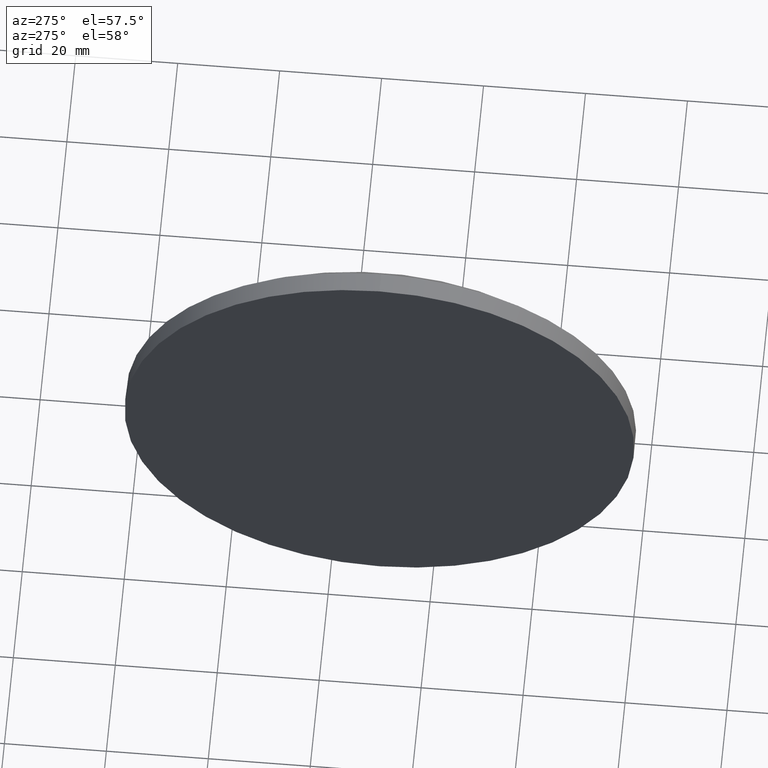
[diagram: clean part render]
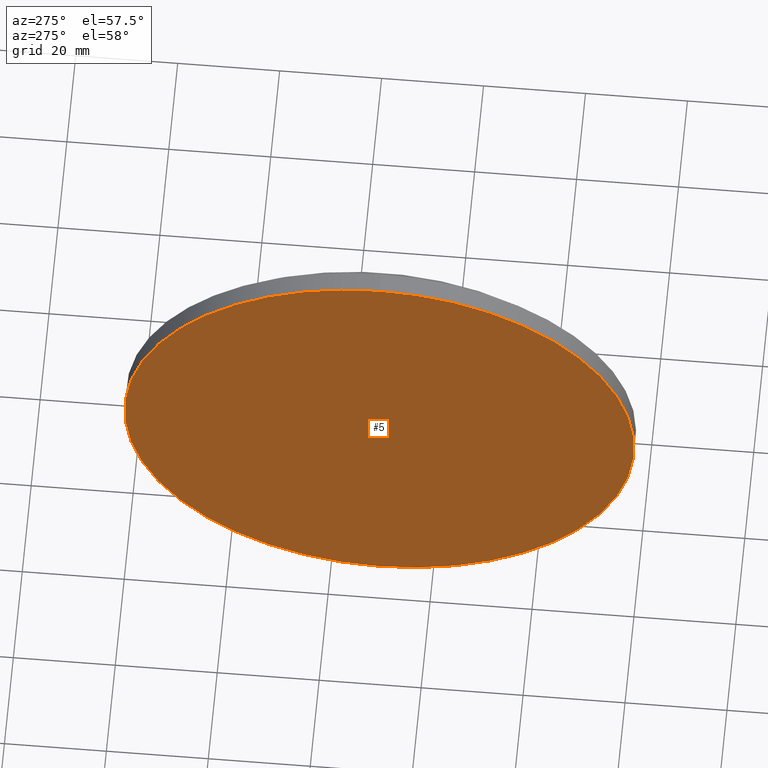
[diagram: same view with one face highlighted and labeled with its STEP entity id]
A machine part, auxiliary view. The second image highlights one B-rep face of the part: STEP entity #5.
In plain terms, the highlighted planar face has unit normal (1, 0, 0).
Its self-contained STEP definition (entity closure, byte-faithful):
#2 = ORIENTED_EDGE ( 'NONE', *, *, #174, .T. ) ;
#5 = ADVANCED_FACE ( 'NONE', ( #99 ), #125, .F. ) ;
#22 = ORIENTED_EDGE ( 'NONE', *, *, #159, .T. ) ;
#24 = CARTESIAN_POINT ( 'NONE',  ( 225.9713472661685500, 130.4671098528244200, 0.0000000000000000000 ) ) ;
#40 = DIRECTION ( 'NONE',  ( -1.000000000000000000, -0.0000000000000000000, -0.0000000000000000000 ) ) ;
#44 = CIRCLE ( 'NONE', #121, 50.00000000000001400 ) ;
#51 = DIRECTION ( 'NONE',  ( 1.000000000000000000, 0.0000000000000000000, 0.0000000000000000000 ) ) ;
#56 = CARTESIAN_POINT ( 'NONE',  ( 225.9713472661685500, 130.4671098528244200, -50.00000000000001400 ) ) ;
#70 = DIRECTION ( 'NONE',  ( 0.0000000000000000000, 0.0000000000000000000, -1.000000000000000000 ) ) ;
#76 = CARTESIAN_POINT ( 'NONE',  ( 225.9713472661685500, 130.4671098528244200, 0.0000000000000000000 ) ) ;
#87 = CARTESIAN_POINT ( 'NONE',  ( 225.9713472661685500, 130.4671098528244200, 0.0000000000000000000 ) ) ;
#89 = AXIS2_PLACEMENT_3D ( 'NONE', #24, #144, #175 ) ;
#95 = VERTEX_POINT ( 'NONE', #56 ) ;
#98 = EDGE_LOOP ( 'NONE', ( #2, #22 ) ) ;
#99 = FACE_OUTER_BOUND ( 'NONE', #98, .T. ) ;
#118 = AXIS2_PLACEMENT_3D ( 'NONE', #87, #51, #70 ) ;
#121 = AXIS2_PLACEMENT_3D ( 'NONE', #76, #40, #143 ) ;
#125 = PLANE ( 'NONE',  #118 ) ;
#143 = DIRECTION ( 'NONE',  ( 0.0000000000000000000, 0.0000000000000000000, 1.000000000000000000 ) ) ;
#144 = DIRECTION ( 'NONE',  ( -1.000000000000000000, -0.0000000000000000000, -0.0000000000000000000 ) ) ;
#149 = CIRCLE ( 'NONE', #89, 50.00000000000001400 ) ;
#157 = CARTESIAN_POINT ( 'NONE',  ( 225.9713472661685500, 130.4671098528244200, 50.00000000000001400 ) ) ;
#159 = EDGE_CURVE ( 'NONE', #95, #167, #149, .T. ) ;
#167 = VERTEX_POINT ( 'NONE', #157 ) ;
#174 = EDGE_CURVE ( 'NONE', #167, #95, #44, .T. ) ;
#175 = DIRECTION ( 'NONE',  ( 0.0000000000000000000, 0.0000000000000000000, 1.000000000000000000 ) ) ;